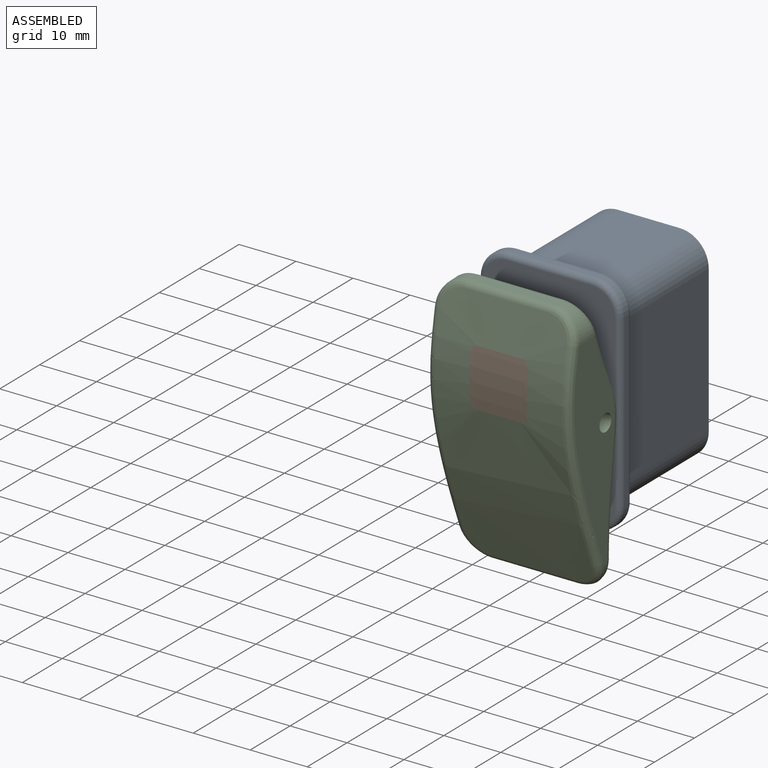
[diagram: assembled view]
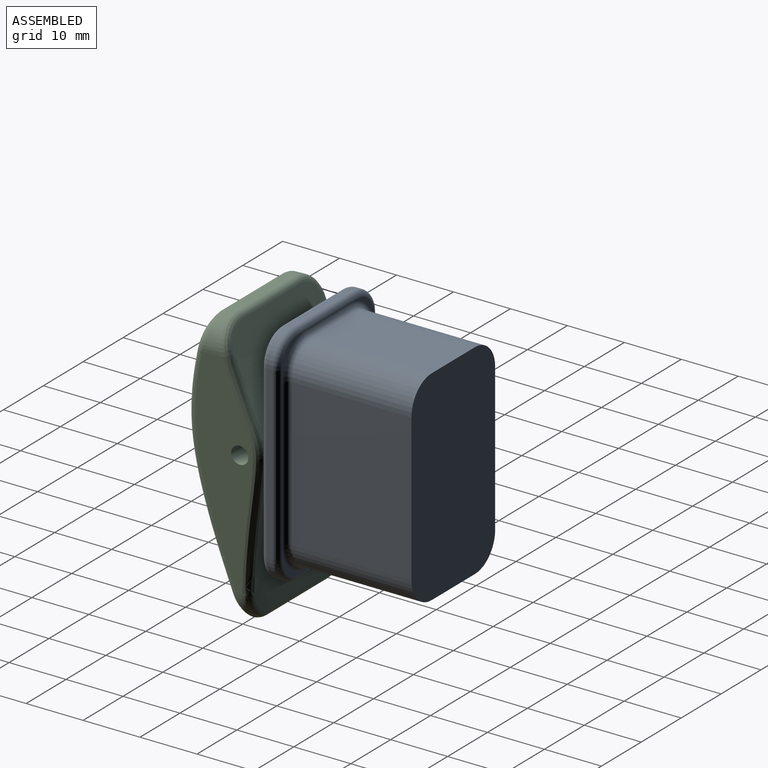
[diagram: assembled view, second angle]
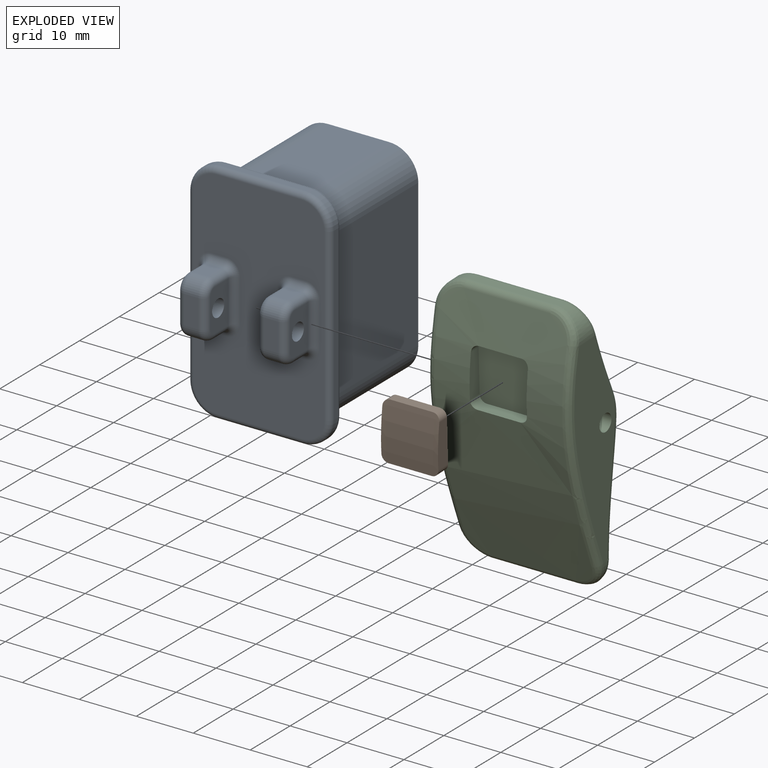
[diagram: exploded view]
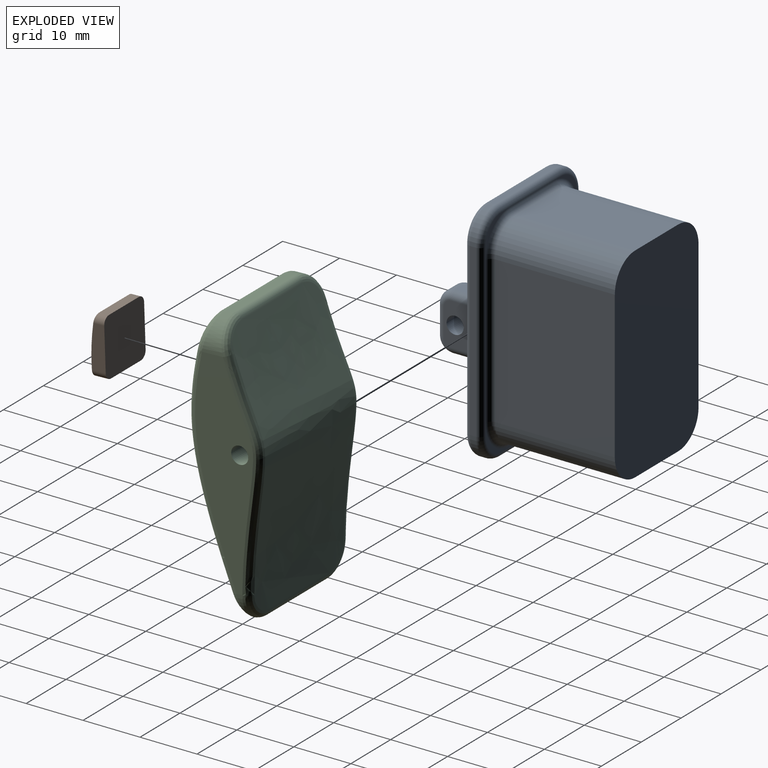
[diagram: exploded view, second angle]
ASSEMBLY  parts=3 mates=2
PART A: 98 faces, bbox 25.8x32.2x40.8 mm
  f0: plane 38x23mm, normal (0,-1,0), area 683.5mm2, adj f22,f23,f24,f25,f26,f27,f28,f29
  f1: plane 6.08x6.08mm, normal (0,1,0), area 4.5mm2, adj f36,f43,f44,f45
  f2: plane 6.08x6.08mm, normal (0,1,0), area 4.5mm2, adj f34,f35,f39,f43
  f3: plane 6.08x6.08mm, normal (0,1,0), area 4.5mm2, adj f30,f33,f34,f38
  f4: plane 25.84x21mm, normal (1,0,0), area 542.6mm2, adj f8,f9,f12,f41
  f5: plane 21x10.84mm, normal (0,0,1), area 227.6mm2, adj f8,f9,f10,f40
  f6: plane 25.84x21mm, normal (-1,0,0), area 542.6mm2, adj f8,f10,f11,f31
  f7: plane 21x10.84mm, normal (0,0,-1), area 227.6mm2, adj f8,f11,f12,f32
  f8: plane 36x21mm, normal (0,1,0), area 733.8mm2, adj f4,f5,f6,f7,f9,f10,f11,f12
  f9: cylinder r=5.08mm len=21mm, axis (0,-1,0), area 167.6mm2, adj f4,f5,f8,f36
  f10: cylinder r=5.08mm len=21mm, axis (0,1,0), area 167.6mm2, adj f5,f6,f8,f35
  f11: cylinder r=5.08mm len=21mm, axis (0,-1,0), area 167.6mm2, adj f6,f7,f8,f30
  f12: cylinder r=5.08mm len=21mm, axis (0,1,0), area 167.6mm2, adj f4,f7,f8,f37
  f13: plane 6.08x6.08mm, normal (0,1,0), area 4.5mm2, adj f37,f38,f42,f44
  f14: plane 30x1mm, normal (1,0,0), area 30mm2, adj f18,f21,f27,f44
  f15: plane 15x1mm, normal (0,0,1), area 15mm2, adj f18,f19,f28,f43
  f16: plane 30x1mm, normal (-1,0,0), area 30mm2, adj f19,f20,f24,f34
  f17: plane 15x1mm, normal (0,0,-1), area 15mm2, adj f20,f21,f23,f38
  f18: cylinder r=5mm len=5mm, axis (0,-1,0), area 7.9mm2, adj f14,f15,f29,f45
  f19: cylinder r=5mm len=5mm, axis (0,1,0), area 7.9mm2, adj f15,f16,f26,f39
  f20: cylinder r=5mm len=5mm, axis (0,-1,0), area 7.9mm2, adj f16,f17,f22,f33
  f21: cylinder r=5mm len=5mm, axis (0,1,0), area 7.9mm2, adj f14,f17,f25,f42
  f22: torus R=4mm, axis (0,-1,0), area 11.4mm2, adj f0,f20,f23,f24
  f23: cylinder r=1mm len=15mm, axis (-1,0,0), area 23.6mm2, adj f0,f17,f22,f25
  f24: cylinder r=1mm len=30mm, axis (0,0,1), area 47.1mm2, adj f0,f16,f22,f26
  f25: torus R=4mm, axis (0,-1,0), area 11.4mm2, adj f0,f21,f23,f27
  f26: torus R=4mm, axis (0,-1,0), area 11.4mm2, adj f0,f19,f24,f28
  f27: cylinder r=1mm len=30mm, axis (0,0,-1), area 47.1mm2, adj f0,f14,f25,f29
  f28: cylinder r=1mm len=15mm, axis (1,0,0), area 23.6mm2, adj f0,f15,f26,f29
  f29: torus R=4mm, axis (0,-1,0), area 11.4mm2, adj f0,f18,f27,f28
  f30: torus R=6.08mm, axis (0,-1,0), area 13.4mm2, adj f3,f11,f31,f32
  f31: cylinder r=1mm len=25.84mm, axis (0,0,1), area 40.6mm2, adj f6,f30,f34,f35
  f32: cylinder r=1mm len=10.84mm, axis (-1,0,0), area 17mm2, adj f7,f30,f37,f38
  f33: torus R=4mm, axis (0,-1,0), area 11.4mm2, adj f3,f20,f34,f38
  f34: cylinder r=1mm len=30mm, axis (0,0,-1), area 47.1mm2, adj f2,f3,f16,f31,f33,f39
  f35: torus R=6.08mm, axis (0,-1,0), area 13.4mm2, adj f2,f10,f31,f40
  f36: torus R=6.08mm, axis (0,-1,0), area 13.4mm2, adj f1,f9,f40,f41
  f37: torus R=6.08mm, axis (0,-1,0), area 13.4mm2, adj f12,f13,f32,f41
  f38: cylinder r=1mm len=15mm, axis (1,0,0), area 23.6mm2, adj f3,f13,f17,f32,f33,f42
  f39: torus R=4mm, axis (0,-1,0), area 11.4mm2, adj f2,f19,f34,f43
  f40: cylinder r=1mm len=10.84mm, axis (1,0,0), area 17mm2, adj f5,f35,f36,f43
  f41: cylinder r=1mm len=25.84mm, axis (0,0,-1), area 40.6mm2, adj f4,f36,f37,f44
  f42: torus R=4mm, axis (0,-1,0), area 11.4mm2, adj f13,f21,f38,f44
  f43: cylinder r=1mm len=15mm, axis (-1,0,0), area 23.6mm2, adj f1,f2,f15,f39,f40,f45
  f44: cylinder r=1mm len=30mm, axis (0,0,1), area 47.1mm2, adj f1,f13,f14,f41,f42,f45
  f45: torus R=4mm, axis (0,-1,0), area 11.4mm2, adj f1,f18,f43,f44
  f46: plane 7.5x4.5mm, normal (1,0,0), area 26mm2, adj f60,f62,f63,f68,f71,f72,f97
  f47: plane 3.25x2.5mm, normal (0,0,1), area 8.1mm2, adj f58,f72,f73,f77
  f48: plane 7.5x4.5mm, normal (-1,0,0), area 26mm2, adj f61,f64,f65,f69,f73,f74,f97
  f49: plane 3.25x2.5mm, normal (0,0,-1), area 8.1mm2, adj f59,f62,f65,f66
  f50: plane 5x2.5mm, normal (0,-1,0), area 12.5mm2, adj f58,f59,f63,f64
  f51: plane 3.25x2.5mm, normal (0,0,1), area 8.1mm2, adj f57,f80,f83,f84
  f52: plane 7.5x4.5mm, normal (-1,0,0), area 26mm2, adj f78,f80,f81,f86,f89,f90,f96
  f53: plane 3.25x2.5mm, normal (0,0,-1), area 8.1mm2, adj f56,f90,f91,f95
  f54: plane 7.5x4.5mm, normal (1,0,0), area 26mm2, adj f79,f82,f83,f87,f91,f92,f96
  f55: plane 5x2.5mm, normal (0,-1,0), area 12.5mm2, adj f56,f57,f81,f82
  f56: cylinder r=2.5mm len=2.5mm, axis (-1,0,0), area 9.8mm2, adj f53,f55,f86,f87
  f57: cylinder r=2.5mm len=2.5mm, axis (1,0,0), area 9.8mm2, adj f51,f55,f78,f79
  f58: cylinder r=2.5mm len=2.5mm, axis (1,0,0), area 9.8mm2, adj f47,f50,f68,f69
  f59: cylinder r=2.5mm len=2.5mm, axis (-1,0,0), area 9.8mm2, adj f49,f50,f60,f61
  f60: torus R=1.25mm, axis (1,0,0), area 6.3mm2, adj f46,f59,f62,f63
  f61: torus R=1.25mm, axis (1,0,0), area 6.3mm2, adj f48,f59,f64,f65
  f62: cylinder r=1.25mm len=3.25mm, axis (0,1,0), area 6.4mm2, adj f46,f49,f60,f67
  f63: cylinder r=1.25mm len=5mm, axis (0,0,-1), area 9.8mm2, adj f46,f50,f60,f68
  f64: cylinder r=1.25mm len=5mm, axis (0,0,1), area 9.8mm2, adj f48,f50,f61,f69
  f65: cylinder r=1.25mm len=3.25mm, axis (0,-1,0), area 6.4mm2, adj f48,f49,f61,f70
  f66: cylinder r=1.25mm len=2.5mm, axis (1,0,0), area 4.9mm2, adj f0,f49,f67,f70
  f67: torus R=2.5mm, axis (0,-1,0), area 5.3mm2, adj f0,f62,f66,f71
  f68: torus R=1.25mm, axis (1,0,0), area 6.3mm2, adj f46,f58,f63,f72
  f69: torus R=1.25mm, axis (1,0,0), area 6.3mm2, adj f48,f58,f64,f73
  f70: torus R=2.5mm, axis (0,-1,0), area 5.3mm2, adj f0,f65,f66,f74
  f71: cylinder r=1.25mm len=7.5mm, axis (0,0,1), area 14.7mm2, adj f0,f46,f67,f75
  f72: cylinder r=1.25mm len=3.25mm, axis (0,-1,0), area 6.4mm2, adj f46,f47,f68,f75
  f73: cylinder r=1.25mm len=3.25mm, axis (0,1,0), area 6.4mm2, adj f47,f48,f69,f76
  f74: cylinder r=1.25mm len=7.5mm, axis (0,0,-1), area 14.7mm2, adj f0,f48,f70,f76
  f75: torus R=2.5mm, axis (0,-1,0), area 5.3mm2, adj f0,f71,f72,f77
  f76: torus R=2.5mm, axis (0,-1,0), area 5.3mm2, adj f0,f73,f74,f77
  f77: cylinder r=1.25mm len=2.5mm, axis (-1,0,0), area 4.9mm2, adj f0,f47,f75,f76
  f78: torus R=1.25mm, axis (1,0,0), area 6.3mm2, adj f52,f57,f80,f81
  f79: torus R=1.25mm, axis (1,0,0), area 6.3mm2, adj f54,f57,f82,f83
  f80: cylinder r=1.25mm len=3.25mm, axis (0,-1,0), area 6.4mm2, adj f51,f52,f78,f85
  f81: cylinder r=1.25mm len=5mm, axis (0,0,1), area 9.8mm2, adj f52,f55,f78,f86
  f82: cylinder r=1.25mm len=5mm, axis (0,0,-1), area 9.8mm2, adj f54,f55,f79,f87
  f83: cylinder r=1.25mm len=3.25mm, axis (0,1,0), area 6.4mm2, adj f51,f54,f79,f88
  f84: cylinder r=1.25mm len=2.5mm, axis (-1,0,0), area 4.9mm2, adj f0,f51,f85,f88
  f85: torus R=2.5mm, axis (0,-1,0), area 5.3mm2, adj f0,f80,f84,f89
  f86: torus R=1.25mm, axis (1,0,0), area 6.3mm2, adj f52,f56,f81,f90
  f87: torus R=1.25mm, axis (1,0,0), area 6.3mm2, adj f54,f56,f82,f91
  f88: torus R=2.5mm, axis (0,-1,0), area 5.3mm2, adj f0,f83,f84,f92
  f89: cylinder r=1.25mm len=7.5mm, axis (0,0,-1), area 14.7mm2, adj f0,f52,f85,f93
  f90: cylinder r=1.25mm len=3.25mm, axis (0,1,0), area 6.4mm2, adj f52,f53,f86,f93
  f91: cylinder r=1.25mm len=3.25mm, axis (0,-1,0), area 6.4mm2, adj f53,f54,f87,f94
  f92: cylinder r=1.25mm len=7.5mm, axis (0,0,1), area 14.7mm2, adj f0,f54,f88,f94
  f93: torus R=2.5mm, axis (0,-1,0), area 5.3mm2, adj f0,f89,f90,f95
  f94: torus R=2.5mm, axis (0,-1,0), area 5.3mm2, adj f0,f91,f92,f95
  f95: cylinder r=1.25mm len=2.5mm, axis (1,0,0), area 4.9mm2, adj f0,f53,f93,f94
  f96: cylinder r=1.5mm len=5mm, axis (1,0,0), area 47.1mm2, adj f52,f54
  f97: cylinder r=1.5mm len=5mm, axis (1,0,0), area 47.1mm2, adj f46,f48
PART B: 10 faces, bbox 10x2.5x10 mm
  f0: plane 7.51x2.46mm, normal (1,0,0), area 17.3mm2, adj f1,f7,f8,f9
  f1: cylinder r=1.25mm len=2.43mm, axis (0,1,0), area 4.7mm2, adj f0,f2,f8,f9
  f2: plane 7.5x2.36mm, normal (0,0,1), area 17.7mm2, adj f1,f3,f8,f9
  f3: cylinder r=1.25mm len=2.43mm, axis (0,1,0), area 4.7mm2, adj f2,f4,f8,f9
  f4: plane 7.51x2.46mm, normal (-1,0,0), area 17.3mm2, adj f3,f5,f8,f9
  f5: cylinder r=1.25mm len=1.93mm, axis (0,1,0), area 3.5mm2, adj f4,f6,f8,f9
  f6: plane 7.5x1.71mm, normal (0,0,-1), area 12.8mm2, adj f5,f7,f8,f9
  f7: cylinder r=1.25mm len=1.93mm, axis (0,1,0), area 3.5mm2, adj f0,f6,f8,f9
  f8: plane 10x10mm, normal (0,1,0), area 98.7mm2, adj f0,f1,f2,f3,f4,f5,f6,f7
  f9: extruded ~10x10mm, area 99.2mm2, adj f0,f1,f2,f3,f4,f5,f6,f7
PART C: 35 faces, bbox 25.1x12.6x47 mm
  f0: extruded ~45.28x22.5mm, area 940.9mm2, adj f14,f15,f18,f19,f21,f22,f23,f24
  f1: plane 15x1.52mm, normal (0,0,-1), area 22.7mm2, adj f5,f7,f10,f19
  f2: extruded ~44.83x22.5mm, area 1006.3mm2, adj f9,f10,f11,f12,f13,f16,f17,f20
  f3: plane 37.01x10.07mm, normal (1,0,0), area 230.4mm2, adj f7,f8,f11,f14,f25
  f4: plane 37.01x10.06mm, normal (-1,0,0), area 230.4mm2, adj f5,f6,f16,f24,f25
  f5: cylinder r=5mm len=5mm, axis (0,1,0), area 20.4mm2, adj f1,f4,f12,f22
  f6: cylinder r=5mm len=3.39mm, axis (0,-1,0), area 1.8mm2, adj f4,f20,f23
  f7: cylinder r=5mm len=5mm, axis (0,-1,0), area 20.4mm2, adj f1,f3,f9,f15
  f8: cylinder r=5mm len=3.39mm, axis (0,1,0), area 1.8mm2, adj f3,f13,f18
  f9: bspline ~6.16x6.11mm, area 12.5mm2, adj f2,f7,f10,f11
  f10: cylinder r=1.25mm len=15mm, axis (-1,0,0), area 24.2mm2, adj f1,f2,f9,f12
  f11: bspline ~40.05x6.24mm, area 75.2mm2, adj f2,f3,f9,f13
  f12: bspline ~6.16x6.11mm, area 12.5mm2, adj f2,f5,f10,f16
  f13: bspline ~6.12x6.12mm, area 13.5mm2, adj f2,f8,f11,f17,f18
  f14: bspline ~43.52x9.03mm, area 75.6mm2, adj f0,f3,f15,f18
  f15: bspline ~6.13x6.1mm, area 12.5mm2, adj f0,f7,f14,f19
  f16: bspline ~40.05x6.24mm, area 75.2mm2, adj f2,f4,f12,f20
  f17: cylinder r=1.25mm len=15mm, axis (-1,0,0), area 26.3mm2, adj f2,f13,f20,f21
  f18: bspline ~6.17x6.09mm, area 11.7mm2, adj f0,f8,f13,f14,f21
  f19: cylinder r=1.25mm len=15mm, axis (-1,0,0), area 24.2mm2, adj f0,f1,f15,f22
  f20: bspline ~6.12x6.12mm, area 13.5mm2, adj f2,f6,f16,f17,f23
  f21: cylinder r=1.25mm len=15mm, axis (-1,0,0), area 19.5mm2, adj f0,f17,f18,f23
  f22: bspline ~6.13x6.1mm, area 12.5mm2, adj f0,f5,f19,f24
  f23: bspline ~6.17x6.09mm, area 11.7mm2, adj f0,f6,f20,f21,f24
  f24: bspline ~43.52x9.02mm, area 75.6mm2, adj f0,f4,f22,f23
  f25: cylinder r=1.5mm len=25mm, axis (1,0,0), area 235.6mm2, adj f3,f4
  f26: plane 7.58x2.49mm, normal (-1,0,0), area 17.3mm2, adj f0,f30,f31,f34
  f27: plane 7.5x2.36mm, normal (0,0,-1), area 17.7mm2, adj f0,f30,f31,f32
  f28: plane 7.58x2.49mm, normal (1,0,0), area 17.3mm2, adj f0,f30,f32,f33
  f29: plane 7.5x1.71mm, normal (0,0,1), area 12.8mm2, adj f0,f30,f33,f34
  f30: plane 10x10mm, normal (0,-1,0), area 98.7mm2, adj f26,f27,f28,f29,f31,f32,f33,f34
  f31: cylinder r=1.25mm len=2.43mm, axis (0,-1,0), area 4.7mm2, adj f0,f26,f27,f30
  f32: cylinder r=1.25mm len=2.43mm, axis (0,1,0), area 4.7mm2, adj f0,f27,f28,f30
  f33: cylinder r=1.25mm len=1.93mm, axis (0,-1,0), area 3.6mm2, adj f0,f28,f29,f30
  f34: cylinder r=1.25mm len=1.93mm, axis (0,1,0), area 3.6mm2, adj f0,f26,f29,f30
PLACE A at identity fixed
PLACE B rot(axis=(0,-1,-0.02),180deg) t=(0,-31.26,-3.71)mm
PLACE C rot(axis=(0,-1,-0.02),180deg) t=(0,-31.26,-3.71)mm
MATE revolute C.f25 <-> A.f96  axis (-1,0,0) through (12.5,-28.75,0)mm
MATE fastened C.f30 <-> B.f8  axis (0,-1,-0.03) through (0,-35.46,6.15)mm
